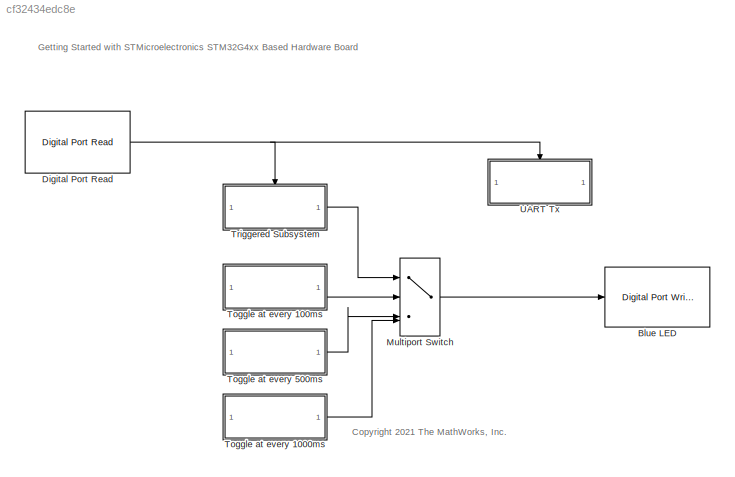
MODEL slx_cf32434edc8e
KIND model
CONFIG AbsTol = auto
CONFIG EnableMultiTasking = on
CONFIG FixedStep = auto
CONFIG MaxStep = auto
CONFIG MinStep = auto
CONFIG RelTol = 1e-3
CONFIG SampleTimeConstraint = Unconstrained
CONFIG SolverName = FixedStepAuto
CONFIG StartTime = 0.0
CONFIG StopTime = 10.0
BLOCK [Reference] Blue LED  REF=stm32f4xxblockslib/Digital Port Write
  SourceBlock = stm32f4xxblockslib/Digital Port Write
  SourceType = stm32cube.blocks.DigitalPortWrite
BLOCK [Reference] Digital Port Read  REF=stm32f4xxblockslib/Digital Port Read
  LibrarySourceBlock = stm32g4xxblockslib/Digital Port Read
  SourceBlock = stm32f4xxblockslib/Digital Port Read
  SourceType = stm32cube.blocks.DigitalPortRead
BLOCK [MultiPortSwitch] Multiport Switch
  DataPortOrder = Zero-based contiguous
  InputSameDT = off
  SaturateOnIntegerOverflow = off
  zeroidx = on
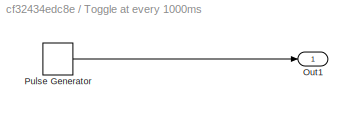
BLOCK [SubSystem] Toggle at every 1000ms
BLOCK [Outport] Toggle at every 1000ms/Out1
BLOCK [DiscretePulseGenerator] Toggle at every 1000ms/Pulse Generator
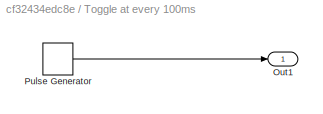
BLOCK [SubSystem] Toggle at every 100ms
BLOCK [Outport] Toggle at every 100ms/Out1
BLOCK [DiscretePulseGenerator] Toggle at every 100ms/Pulse Generator
  SampleTime = 0.1
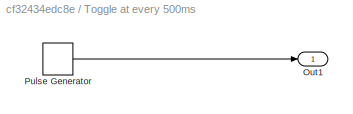
BLOCK [SubSystem] Toggle at every 500ms
BLOCK [Outport] Toggle at every 500ms/Out1
BLOCK [DiscretePulseGenerator] Toggle at every 500ms/Pulse Generator
  SampleTime = 0.5
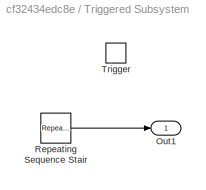
BLOCK [SubSystem] Triggered Subsystem
  TreatAsAtomicUnit = on
BLOCK [Outport] Triggered Subsystem/Out1
BLOCK [Reference] Triggered Subsystem/Repeating Sequence Stair  REF=simulink/Sources/Repeating
Sequence
Stair
  SourceBlock = simulink/Sources/Repeating\nSequence\nStair
  SourceType = Repeating Sequence Stair
BLOCK [TriggerPort] Triggered Subsystem/Trigger
  StatesWhenEnabling = held
  VariantControl = (inherit)
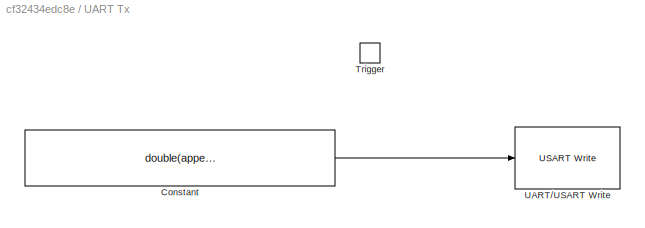
BLOCK [SubSystem] UART Tx
  TreatAsAtomicUnit = on
BLOCK [Constant] UART Tx/Constant
  OutDataTypeStr = uint8
  Value = double(append(char("Hello Simulink"), char(10), char(13)))
BLOCK [TriggerPort] UART Tx/Trigger
  StatesWhenEnabling = held
  VariantControl = (inherit)
BLOCK [Reference] UART Tx/UART//USART Write  REF=stm32blockslib/UART//USART Write
  LibrarySourceBlock = stm32g4xxblockslib/UART//USART Write
  Priority = 1
  SourceBlock = stm32blockslib/UART//USART Write
  SourceType = stm32cube.blocks.UARTWrite
ANNOTATION (root): Getting Started with STMicroelectronics STM32G4xx Based Hardware Board
ANNOTATION (root): <copyright redacted>
NET Digital Port Read:1 -> Triggered Subsystem:trigger, UART Tx:trigger
LINE Multiport Switch:1 -> Blue LED:1
LINE Toggle at every 1000ms/Pulse Generator:1 -> Toggle at every 1000ms/Out1:1
LINE Toggle at every 1000ms:1 -> Multiport Switch:4
LINE Toggle at every 100ms/Pulse Generator:1 -> Toggle at every 100ms/Out1:1
LINE Toggle at every 100ms:1 -> Multiport Switch:2
LINE Toggle at every 500ms/Pulse Generator:1 -> Toggle at every 500ms/Out1:1
LINE Toggle at every 500ms:1 -> Multiport Switch:3
LINE Triggered Subsystem/Repeating Sequence Stair:1 -> Triggered Subsystem/Out1:1
LINE Triggered Subsystem:1 -> Multiport Switch:1
LINE UART Tx/Constant:1 -> UART Tx/UART//USART Write:1
note: NET lines group one-source signal fan-out (src -> all destinations, sorted); 1:1 wires keep LINE
